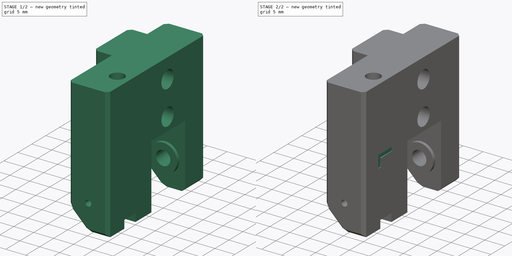
[diagram: build sequence overview — one tinted view per stage of 2, left to right]
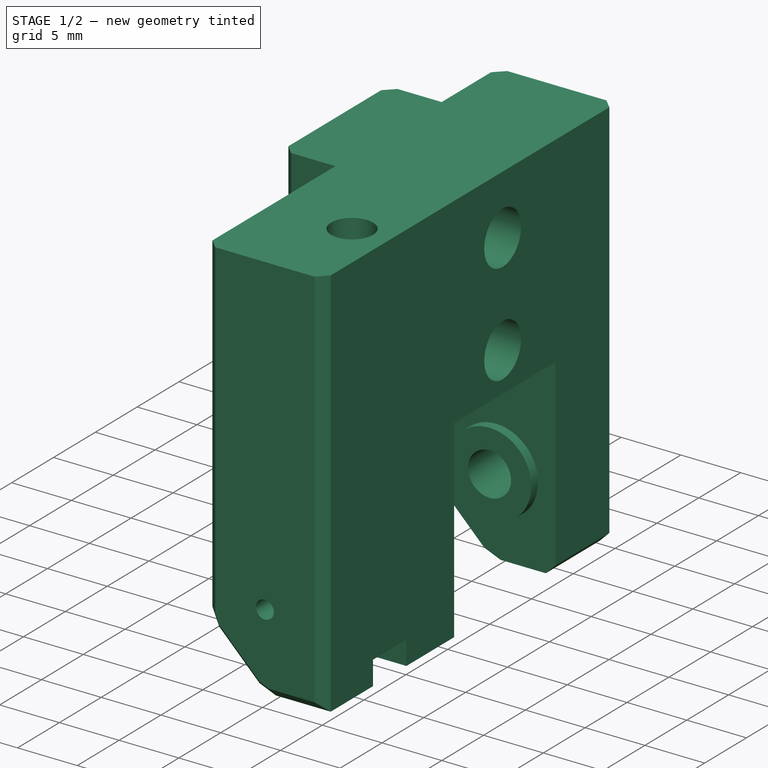
[diagram: stage 1 of 2 — iso view after this stage's code; geometry added in this stage tinted green]
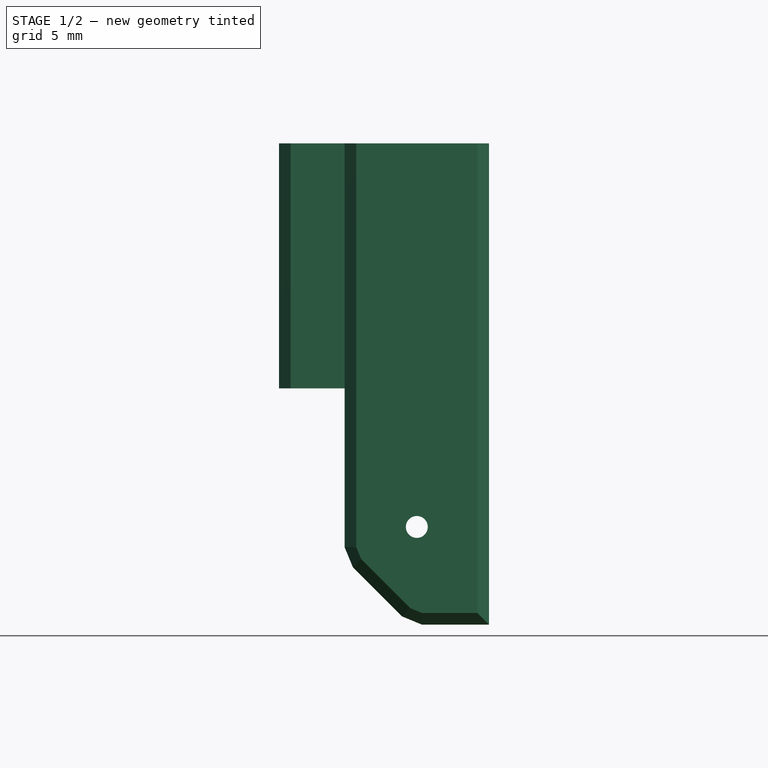
[diagram: stage 1 of 2 — front view after this stage's code; geometry added in this stage tinted green]
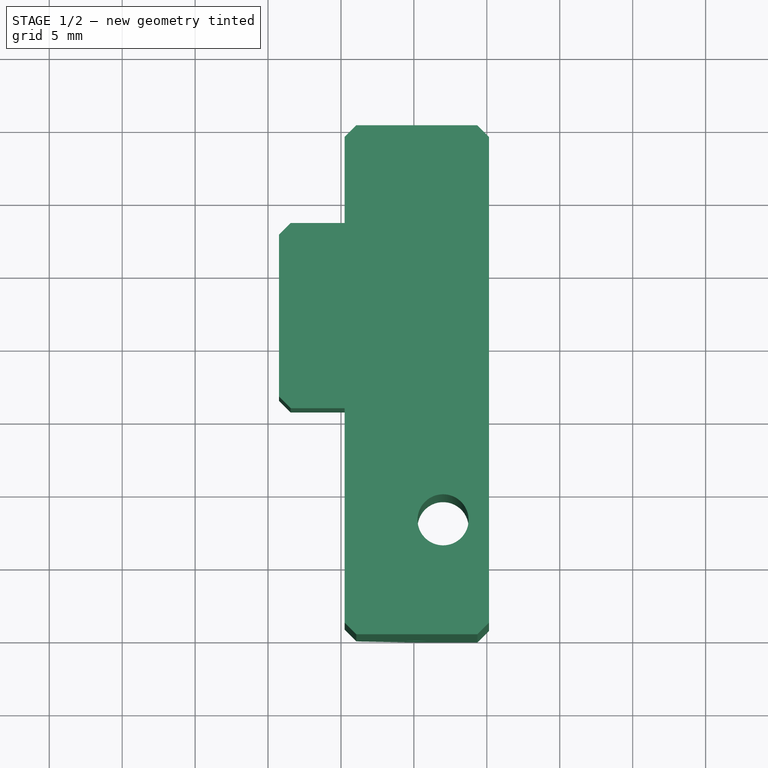
[diagram: stage 1 of 2 — top view after this stage's code; geometry added in this stage tinted green]
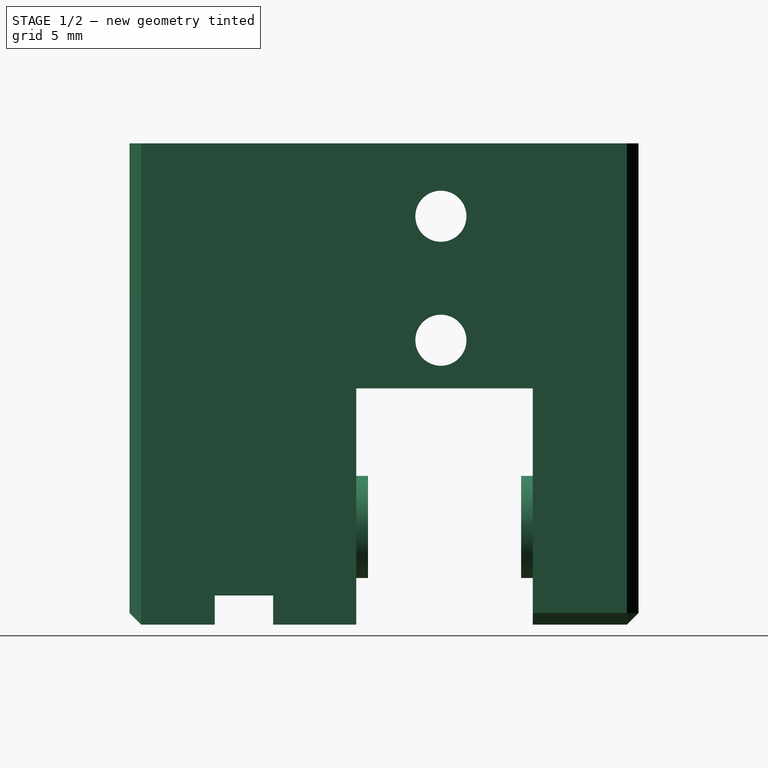
[diagram: stage 1 of 2 — right view after this stage's code; geometry added in this stage tinted green]
FCSTD DOCUMENT  (FreeCAD 1.0R38641 +678 (Git))
Label: k1_tensioner_left
License: All rights reserved
LicenseURL: https://en.wikipedia.org/wiki/All_rights_reserved
objects: PartDesign::Pocket×2, App::Link×2, Part::Feature×1, PartDesign::FeatureBase×1, Sketcher::SketchObject×1, Part::Part2DObjectPython×1, PartDesign::Body×1, App::Part×1
note: 13 computed .brp shape members not serialized (recipe doc carries the construction recipe); baked Part::Feature solids carry a one-line shape summary decoded from their .brp
EXTERNAL_REF file=cad_powge_pulley.FCStd obj=Part
EXTERNAL_REF file=cad_M4_DIN912_20mm.FCStd obj=Body

FEATURE [Part::Feature] Part__Feature  label="step"
  shape: bbox 14.4 x 34.9 x 33 mm, 57 faces (baked)
FEATURE [PartDesign::FeatureBase] BaseFeature
  BaseFeature = -> Part__Feature
  Suppressed = false
FEATURE [PartDesign::Body] Body  label="k1_tensioner_left"
  AllowCompound = false
  BaseFeature = -> Part__Feature
  Group = -> [BaseFeature,Sketch,Pocket,ShapeString,Pocket001]
  Origin = -> Origin
  Placement = pos=(0,0,0) rot=(0.57735,0.57735,0.57735;2.0944rad)
  Tip = -> Pocket001
FEATURE [App::Part] Part  label="k1_tensioner_left_part"
  Group = -> [Part__Feature,Body,Link,Link001]
  Origin = -> Origin001
note: 1 file-system path scrubbed to <path> (originals preserved in the JSON sidecar)

RESOLVED EXTERNAL PARTS (link-assembly join: the EXTERNAL_REF files above that resolve inside this repo's crawl, each included once):
---- part cad_M4_DIN912_20mm.FCStd = doc fcstd_b58806956b0d ----
FCSTD DOCUMENT  (FreeCAD 1.0R38641 +468 (Git))
Label: cad_M4_DIN912_20mm
License: All rights reserved
LicenseURL: https://en.wikipedia.org/wiki/All_rights_reserved
objects: Sketcher::SketchObject×2, PartDesign::Revolution×1, PartDesign::Pocket×1, PartDesign::Body×1
note: 11 computed .brp shape members not serialized (recipe doc carries the construction recipe); baked Part::Feature solids carry a one-line shape summary decoded from their .brp

FEATURE [Sketcher::SketchObject] Sketch
  ArcFitTolerance = 1e-06
  AttachmentSupport = -> [YZ_Plane]
  FullyConstrained = true
  MakeInternals = false
  MapMode = 5
  Placement = pos=(0,0,0) rot=(0.57735,0.57735,0.57735;2.0944rad)
  sketch-geometry (6):
    g0: LineSegment StartX=-3.5 StartY=4 StartZ=0 EndX=-3.5 EndY=0 EndZ=0
    g1: LineSegment StartX=-3.5 StartY=0 StartZ=0 EndX=0 EndY=0 EndZ=0
    g2: LineSegment StartX=-3.5 StartY=4 StartZ=0 EndX=-2 EndY=4 EndZ=0
    g3: LineSegment StartX=-2 StartY=4 StartZ=0 EndX=-2 EndY=24 EndZ=0
    g4: LineSegment StartX=-2 StartY=24 StartZ=0 EndX=0 EndY=24 EndZ=0
    g5: LineSegment StartX=0 StartY=24 StartZ=0 EndX=0 EndY=0 EndZ=0
  constraints (17):
    c: PointOnObject(g0,g-1)
    c: Vertical(g0)
    c: Coincident(g1,g0)
    c: Coincident(g2,g0)
    c: Horizontal(g2)
    c: Coincident(g3,g2)
    c: Vertical(g3)
    c: Coincident(g4,g3)
    c: Horizontal(g4)
    c: Distance(g0,g0) = 4
    c: Distance(g3,g3) = 20
    c: PointOnObject(g4,g-2)
    c: Coincident(g1,g-1)
    c: Distance(g1,g1) = 3.5
    c: Distance(g4,g4) = 2
    c: Coincident(g5,g4)
    c: Coincident(g5,g1)
FEATURE [PartDesign::Revolution] Revolution
  Angle = 360
  Angle2 = 60
  Axis = (0,0,1)
  Base = (0,0,0)
  Placement = pos=(0,0,0) rot=(1,1,1;2.0944rad)
  Profile = -> Sketch
  ReferenceAxis = -> Sketch [V_Axis]
  Refine = true
  Suppressed = false
  Type = 0
FEATURE [Sketcher::SketchObject] Sketch001
  ArcFitTolerance = 1e-06
  AttachmentSupport = -> [Revolution]
  FullyConstrained = true
  MakeInternals = false
  MapMode = 5
  Placement = pos=(0,0,8e-16) rot=(0.707107,0.707107,0;3.14159rad)
  sketch-geometry (7):
    g0: LineSegment StartX=0 StartY=2.5 StartZ=0 EndX=-2.16506 EndY=1.25 EndZ=0
    g1: LineSegment StartX=-2.16506 StartY=1.25 StartZ=0 EndX=-2.16506 EndY=-1.25 EndZ=0
    g2: LineSegment StartX=-2.16506 StartY=-1.25 StartZ=0 EndX=1.2825e-12 EndY=-2.5 EndZ=0
    g3: LineSegment StartX=1.2825e-12 StartY=-2.5 StartZ=0 EndX=2.16506 EndY=-1.25 EndZ=0
    g4: LineSegment StartX=2.16506 StartY=-1.25 StartZ=0 EndX=2.16506 EndY=1.25 EndZ=0
    g5: LineSegment StartX=2.16506 StartY=1.25 StartZ=0 EndX=0 EndY=2.5 EndZ=0
    g6: Circle [constr] CenterX=0 CenterY=0 CenterZ=0 NormalX=0 NormalY=0 NormalZ=1 AngleXU=0 Radius=2.5
  constraints (16):
    c: Coincident(g0,g1)
    c: Coincident(g1,g2)
    c: Coincident(g2,g3)
    c: Coincident(g3,g4)
    c: Coincident(g4,g5)
    c: Coincident(g5,g0)
    c: Equal(g0, g1-g5) x5
    c: PointOnObject(g0,g6)
    c: PointOnObject(g1,g6)
    c: PointOnObject(g2,g6)
    c: PointOnObject(g3,g6)
    c: PointOnObject(g4,g6)
    c: PointOnObject(g5,g6)
    c: Coincident(g6,g-1)
    c: PointOnObject(g5,g-2)
    c: Diameter(g6) = 5
FEATURE [PartDesign::Pocket] Pocket
  BaseFeature = -> Revolution
  Direction = (0,0,1)
  Length = 2
  Length2 = 5
  Placement = pos=(0,0,0) rot=(1,1,1;2.0944rad)
  Profile = -> Sketch001
  ReferenceAxis = -> Sketch001 [N_Axis]
  Refine = true
  Suppressed = false
  Type = 0
FEATURE [PartDesign::Body] Body  label="cad_M4_DIN912_20mm"
  AllowCompound = false
  Group = -> [Sketch,Revolution,Sketch001,Pocket]
  Origin = -> Origin
  Tip = -> Pocket
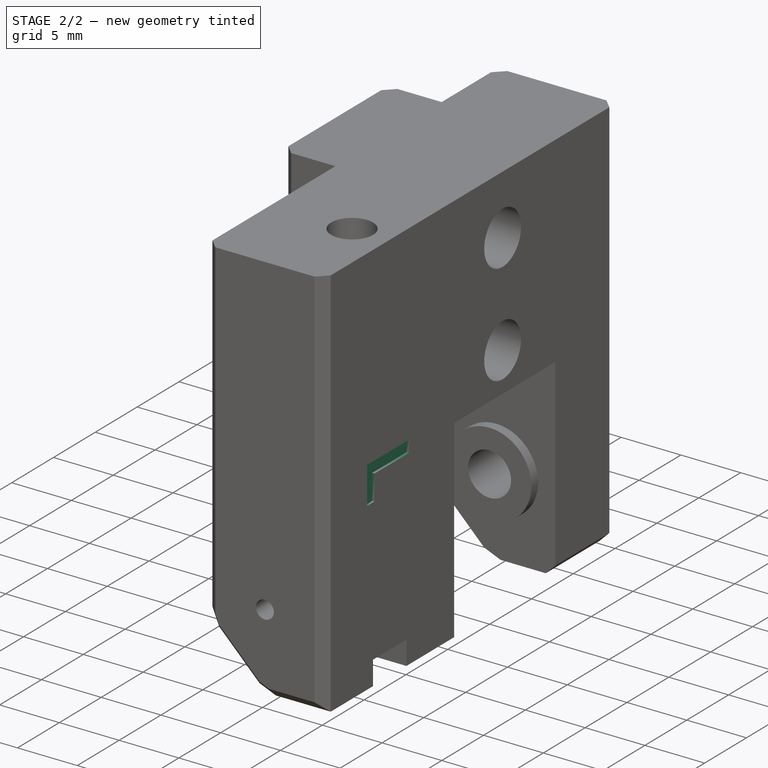
[diagram: stage 2 of 2 — iso view after this stage's code; geometry added in this stage tinted green]
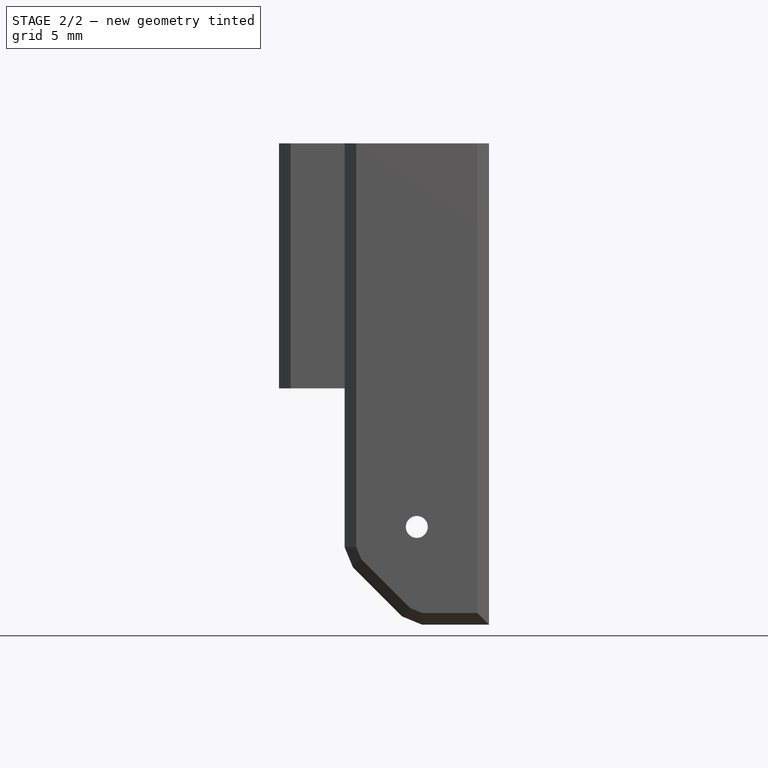
[diagram: stage 2 of 2 — front view after this stage's code; geometry added in this stage tinted green]
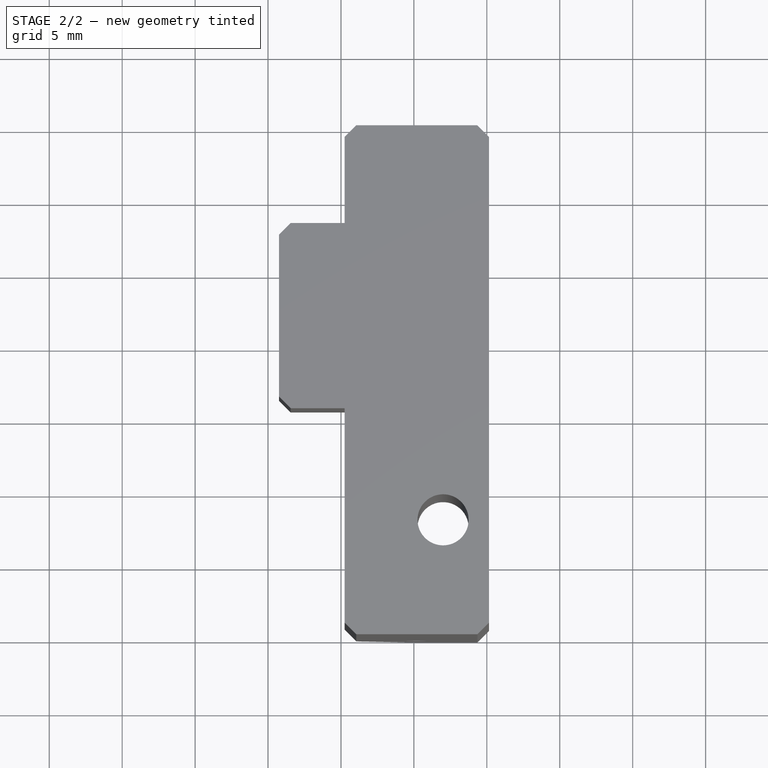
[diagram: stage 2 of 2 — top view after this stage's code; geometry added in this stage tinted green]
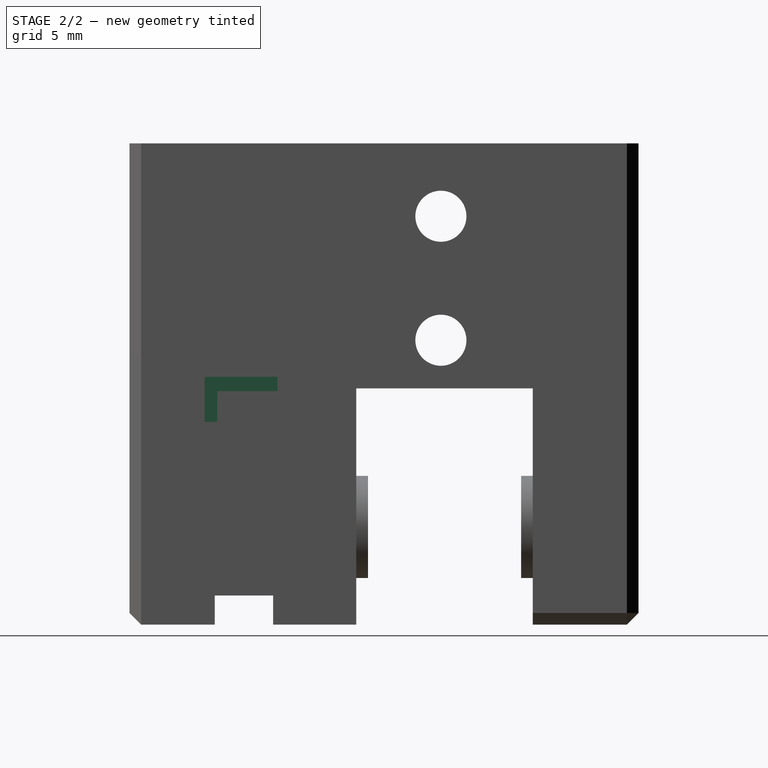
[diagram: stage 2 of 2 — right view after this stage's code; geometry added in this stage tinted green]
FEATURE [Sketcher::SketchObject] Sketch
  ArcFitTolerance = 1e-06
  AttachmentSupport = -> [BaseFeature]
  ExternalGeometry = -> [BaseFeature]
  FullyConstrained = true
  MakeInternals = false
  MapMode = 5
  Placement = pos=(0,-25.5,5.6e-15) rot=(0,0.707107,0.707107;3.14159rad)
  sketch-geometry (1):
    g0: Circle CenterX=-5.2 CenterY=6.7 CenterZ=0 NormalX=0 NormalY=0 NormalZ=1 AngleXU=0 Radius=0.75
  constraints (2):
    c: Coincident(g0,g-3)
    c: Diameter(g0) = 1.5
FEATURE [PartDesign::Pocket] Pocket
  BaseFeature = -> BaseFeature
  Direction = (0,-1,2e-16)
  Length = 5
  Length2 = 5
  Profile = -> Sketch
  ReferenceAxis = -> Sketch [N_Axis]
  Refine = true
  Suppressed = false
  Type = 1
FEATURE [App::Link] Link  label="cad_powge_pulley_link"
  LinkPlacement = pos=(6.7,5.2,-18.65) rot=(0,0,1;0rad)
  LinkedObject = -> <external cad_powge_pulley.FCStd>#Part
  Placement = pos=(6.7,5.2,-18.65) rot=(0,0,1;0rad)
FEATURE [App::Link] Link001  label="cad_M4_DIN912_20mm_link"
  LinkPlacement = pos=(6.7,5.2,-0.3) rot=(0,1,0;3.14159rad)
  LinkedObject = -> <external cad_M4_DIN912_20mm.FCStd>#Body
  Placement = pos=(6.7,5.2,-0.3) rot=(0,1,0;3.14159rad)
FEATURE [Part::Part2DObjectPython] ShapeString  # Draft 2D object (typed FeaturePython)
  FontFile = <path>
  Fuse = false
  Justification = 6
  JustificationReference = 0
  KeepLeftMargin = false
  MakeFace = true
  ObliqueAngle = 0
  Placement = pos=(10.15,-29.85,17) rot=(0,-1,0;4.71239rad)
  ScaleToSize = true
  Size = 5
  String = L
  Tracking = 0
FEATURE [PartDesign::Pocket] Pocket001
  BaseFeature = -> Pocket
  Direction = (-1,2e-16,4e-16)
  Length = 0.2
  Length2 = 5
  Profile = -> ShapeString
  ReferenceAxis = -> ShapeString [N_Axis]
  Refine = true
  Suppressed = false
  Type = 0
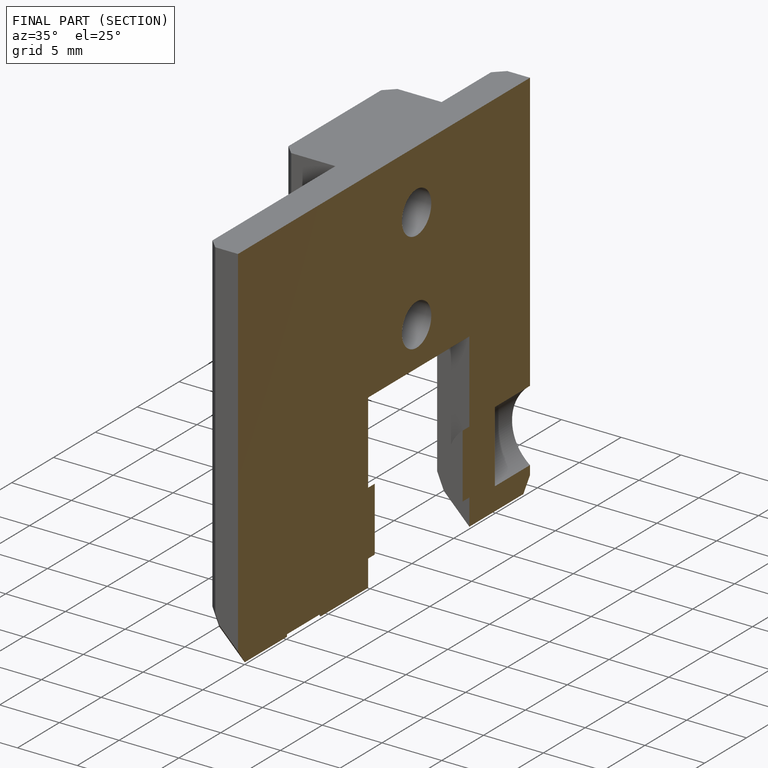
[diagram: finished part — half-section view (interior)]
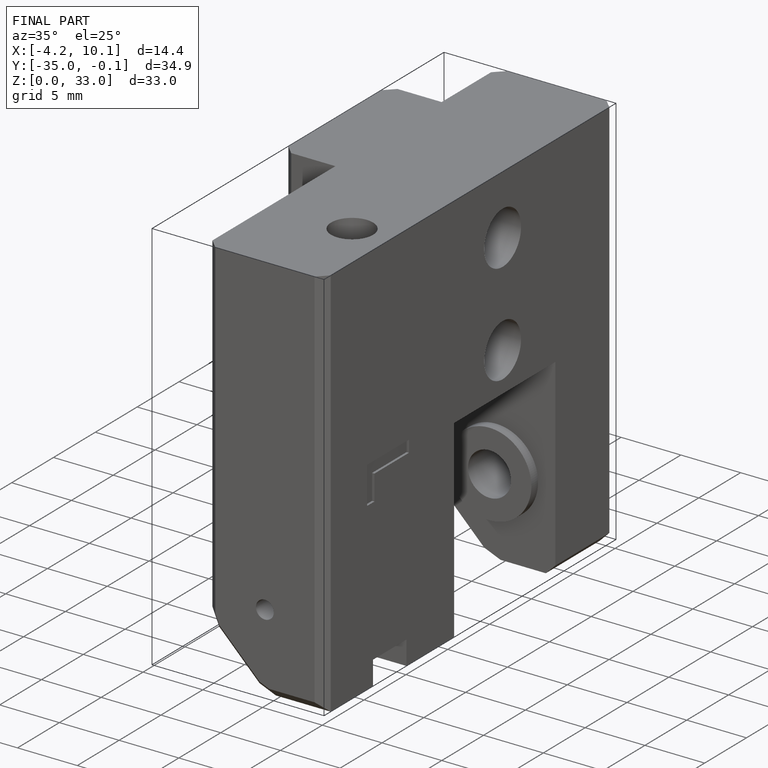
[diagram: finished part — iso view with bounding-box wireframe]
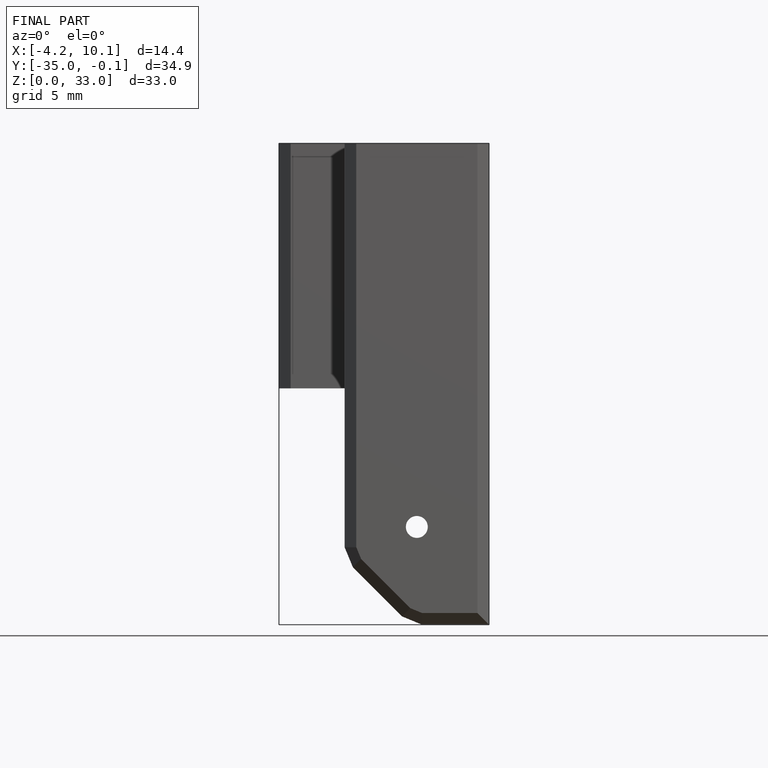
[diagram: finished part — front view with bounding-box wireframe]
